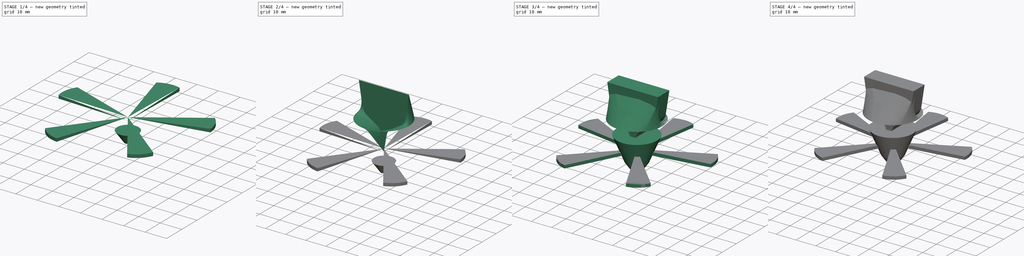
[diagram: build sequence overview — one tinted view per stage of 4, left to right]
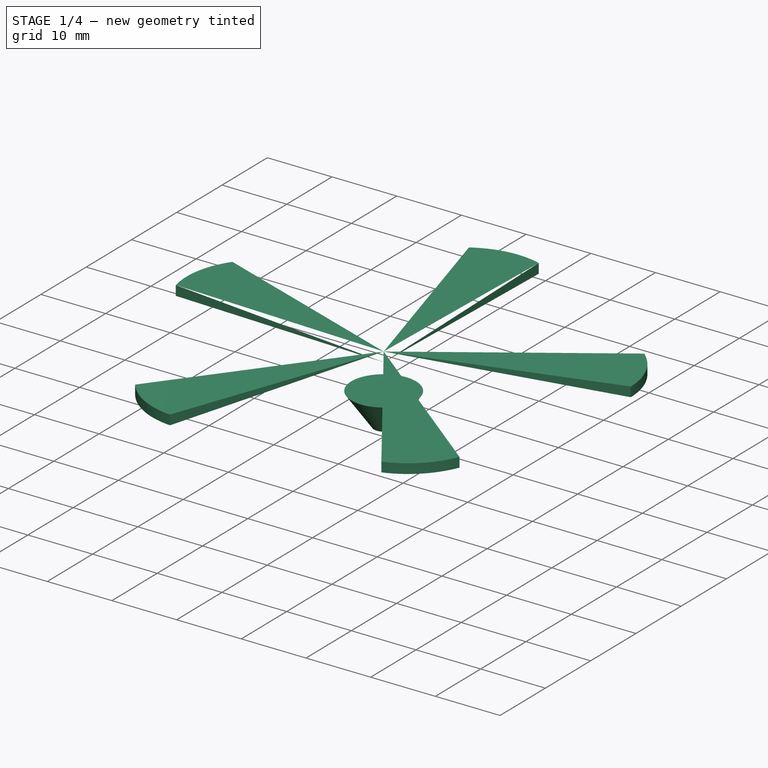
[diagram: stage 1 of 4 — iso view after this stage's code; geometry added in this stage tinted green]
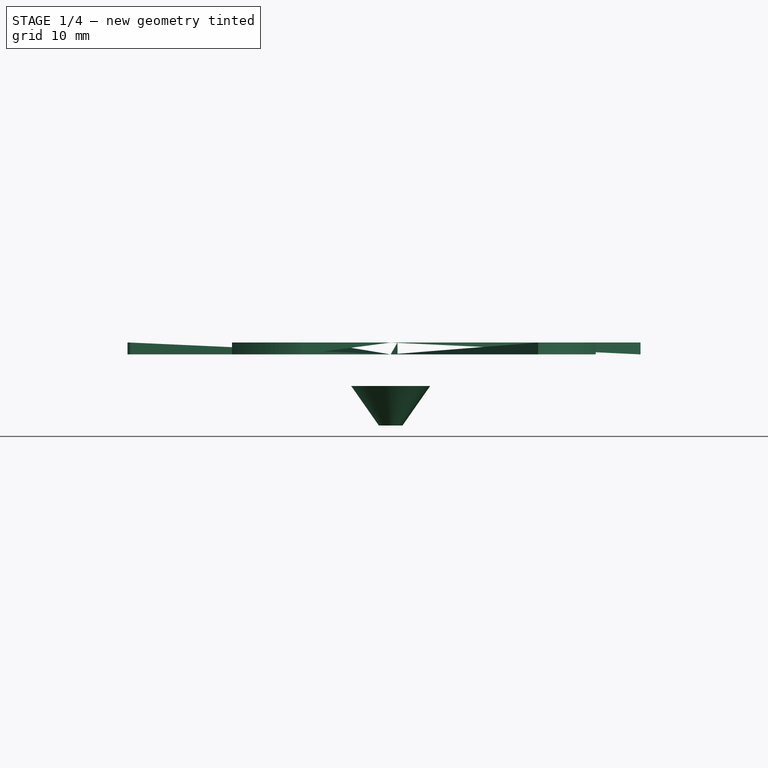
[diagram: stage 1 of 4 — front view after this stage's code; geometry added in this stage tinted green]
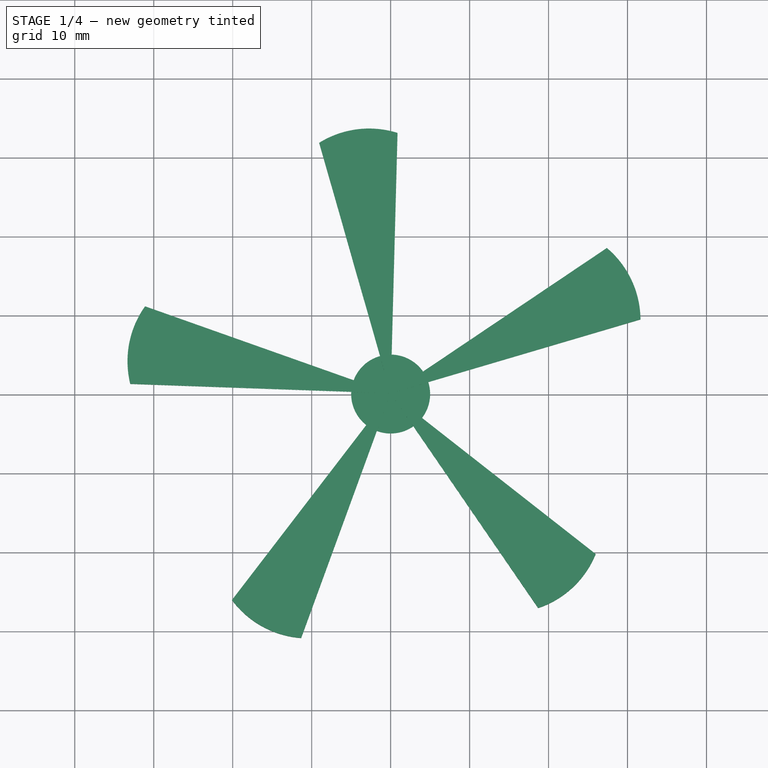
[diagram: stage 1 of 4 — top view after this stage's code; geometry added in this stage tinted green]
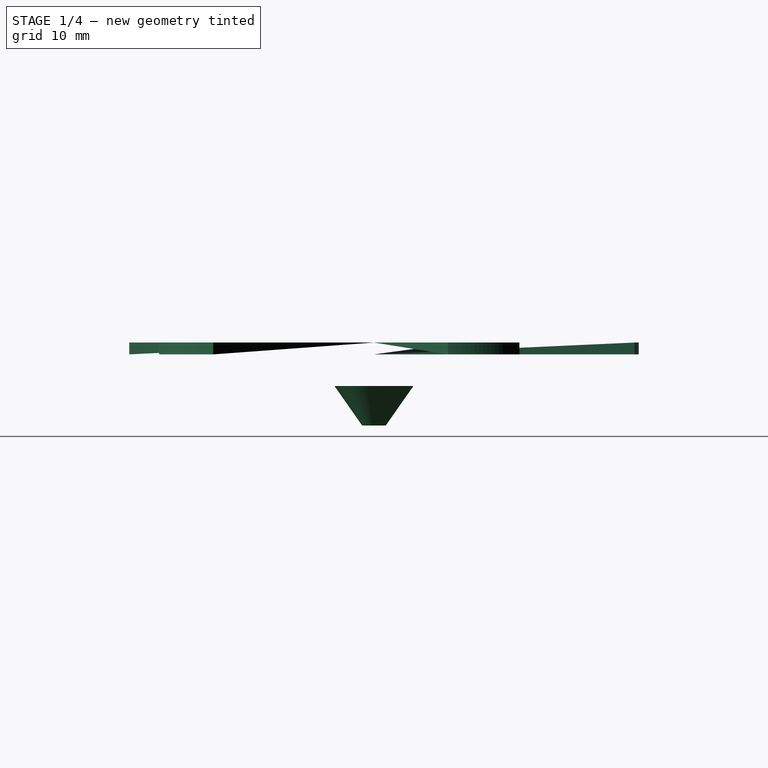
[diagram: stage 1 of 4 — right view after this stage's code; geometry added in this stage tinted green]
FCSTD DOCUMENT  (FreeCAD 0.17R13528 (Git))
Label: propeller3
License: All rights reserved
LicenseURL: http://en.wikipedia.org/wiki/All_rights_reserved
objects: Sketcher::SketchObject×11, Part::Loft×5, PartDesign::Pad×2, App::DocumentObjectGroup×2, PartDesign::Body×2, PartDesign::Fillet×1, Part::Mirroring×1, PartDesign::FeatureBase×1, App::DocumentObjectGroupPython×1
note: 25 computed .brp shape members not serialized (recipe doc carries the construction recipe); baked Part::Feature solids carry a one-line shape summary decoded from their .brp

FEATURE [Sketcher::SketchObject] Sketch
  MapMode = 5
  Support = -> [XY_Plane]
  sketch-geometry (15):
    g0: LineSegment StartX=5 StartY=32.619 StartZ=0 EndX=0 EndY=0 EndZ=0
    g1: LineSegment StartX=0 StartY=0 StartZ=0 EndX=29.4774 EndY=14.8351 EndZ=0
    g2: LineSegment StartX=32.5676 StartY=5.32455 StartZ=0 EndX=0 EndY=0 EndZ=0
    g3: LineSegment StartX=0 StartY=0 StartZ=0 EndX=23.2181 EndY=-23.4504 EndZ=0
    g4: LineSegment StartX=15.1279 StartY=-29.3283 StartZ=0 EndX=0 EndY=0 EndZ=0
    g5: LineSegment StartX=0 StartY=0 StartZ=0 EndX=-15.1279 EndY=-29.3283 EndZ=0
    g6: LineSegment StartX=-23.2181 StartY=-23.4504 StartZ=0 EndX=0 EndY=0 EndZ=0
    g7: LineSegment StartX=0 StartY=0 StartZ=0 EndX=-32.5676 EndY=5.32455 EndZ=0
    g8: LineSegment StartX=-29.4774 StartY=14.8351 StartZ=0 EndX=0 EndY=0 EndZ=0
    g9: LineSegment StartX=0 StartY=0 StartZ=0 EndX=-5 EndY=32.619 EndZ=0
    g10: ArcOfCircle CenterX=0 CenterY=21.7103 CenterZ=0 NormalX=0 NormalY=0 NormalZ=1 AngleXU=0 Radius=12 StartAngle=1.14102 EndAngle=2.00057
    g11: ArcOfCircle CenterX=20.6477 CenterY=6.70885 CenterZ=0 NormalX=0 NormalY=0 NormalZ=1 AngleXU=0 Radius=12 StartAngle=6.16757 EndAngle=7.02712
    g12: ArcOfCircle CenterX=12.761 CenterY=-17.564 CenterZ=0 NormalX=0 NormalY=0 NormalZ=1 AngleXU=0 Radius=12 StartAngle=4.91093 EndAngle=5.77048
    g13: ArcOfCircle CenterX=-12.761 CenterY=-17.564 CenterZ=0 NormalX=0 NormalY=0 NormalZ=1 AngleXU=0 Radius=12 StartAngle=3.6543 EndAngle=4.51385
    g14: ArcOfCircle CenterX=-20.6477 CenterY=6.70885 CenterZ=0 NormalX=0 NormalY=0 NormalZ=1 AngleXU=0 Radius=12 StartAngle=2.39766 EndAngle=3.25721
  constraints (44):
    c: Coincident(g0,g-1)
    c: Coincident(g0,g1)
    c: Coincident(g2,g-1)
    c: Coincident(g2,g3)
    c: Coincident(g4,g-1)
    c: Coincident(g4,g5)
    c: Coincident(g6,g-1)
    c: Coincident(g6,g7)
    c: Coincident(g8,g-1)
    c: Coincident(g8,g9)
    c: Coincident(g14,g8)
    c: Coincident(g14,g7)
    c: Coincident(g10,g9)
    c: Coincident(g0,g10)
    c: Coincident(g1,g11)
    c: Coincident(g11,g2)
    c: Coincident(g3,g12)
    c: Coincident(g4,g12)
    c: Radius(g10) = 12
    c: Radius(g11) = 12
    c: Radius(g12) = 12
    c: Coincident(g13,g6)
    c: Coincident(g5,g13)
    c: Radius(g13) = 12
    c: Radius(g14) = 12
    c: Distance(g0,g9) = 10
    c: Distance(g1,g2) = 10
    c: Distance(g3,g4) = 10
    c: Distance(g5,g6) = 10
    c: Distance(g7,g8) = 10
    c: Angle(g0,g8) = 1.25664
    c: Angle(g2,g0) = 1.25664
    c: Angle(g4,g2) = 1.25664
    c: Angle(g6,g4) = 1.25664
    c: Symmetric(g0,g9,g-2)
    c: Distance(g-1,g9) = 33
    c: Distance(g-1,g1) = 33
    c: Distance(g-1,g3) = 33
    c: Distance(g-1,g5) = 33
    c: Distance(g-1,g7) = 33
    c: Distance(g4) = 33
    c: Distance(g6) = 33
    c: Distance(g8) = 33
    c: Distance(g2) = 33
FEATURE [PartDesign::Pad] Pad  label="Propeller"
  Length = 1.5
  Length2 = 100
  Placement = pos=(0,0,0) rot=(0,0,1;2.63894rad)
  Profile = -> Sketch
  Type = 0
FEATURE [Sketcher::SketchObject] Sketch010  label="test_sketch"
  Placement = pos=(0,-20,0) rot=(1,0,0;1.5708rad)
  sketch-geometry (5):
    g0: LineSegment StartX=12.5 StartY=15.0383 StartZ=0 EndX=10.8039 EndY=4.03828 EndZ=0
    g1: LineSegment StartX=8.11478 StartY=-0.0968081 StartZ=0 EndX=3.39927 EndY=-3.12332 EndZ=0
    g2: LineSegment StartX=1.39927 StartY=-6.12332 StartZ=0 EndX=0 EndY=-14 EndZ=0
    g3: ArcOfCircle CenterX=4.87394 CenterY=4.95264 CenterZ=0 NormalX=0 NormalY=0 NormalZ=1 AngleXU=0 Radius=6 StartAngle=5.28299 EndAngle=6.1302
    g4: ArcOfCircle CenterX=5.8299 CenterY=-6.91041 CenterZ=0 NormalX=0 NormalY=0 NormalZ=1 AngleXU=0 Radius=4.5 StartAngle=2.1414 EndAngle=2.96578
  constraints (14):
    c: Tangent(g0,g3) = 1.5708
    c: Tangent(g1,g3) = 1.5708
    c: Tangent(g1,g4) = -1.5708
    c: Tangent(g2,g4) = -1.5708
    c: PointOnObject(g2,g-2)
    c: Distance(g2) = 8
    c: Radius(g4) = 4.5
    c: DistanceY(g2,g1) = 3
    c: DistanceX(g2,g1) = 2
    c: DistanceY(g0,g0) = 11
    c: Radius(g3) = 6
    c: DistanceX(g-1,g0) = 12.5
    c: DistanceY(g2,g-1) = 14
    c: Distance(g0,g0) = 11.13
FEATURE [App::DocumentObjectGroup] Group  label="winkeln zur näherung des kreises"
  Group = -> [Sketch010]
FEATURE [Sketcher::SketchObject] Sketch011  label="kreis_nr_3"
  MapMode = 5
  Placement = pos=(0,0,-4) rot=(0,0,1;0rad)
  sketch-geometry (1):
    g0: Circle CenterX=0 CenterY=0 CenterZ=0 NormalX=0 NormalY=0 NormalZ=1 AngleXU=0 Radius=5
  constraints (2):
    c: Coincident(g0,g-1)
    c: Radius(g0) = 5
FEATURE [PartDesign::Body] Body  label="Propellerprojekt"
  Group = -> [Sketch,Pad,Sketch004,Sketch006,Sketch008,Pad001,Fillet,Sketch011]
  Origin = -> Origin
  Tip = -> Fillet
FEATURE [Part::Loft] Loft004
  Closed = false
  MaxDegree = 5
  Ruled = false
  Sections = -> [Sketch007,Sketch011]
  Solid = true
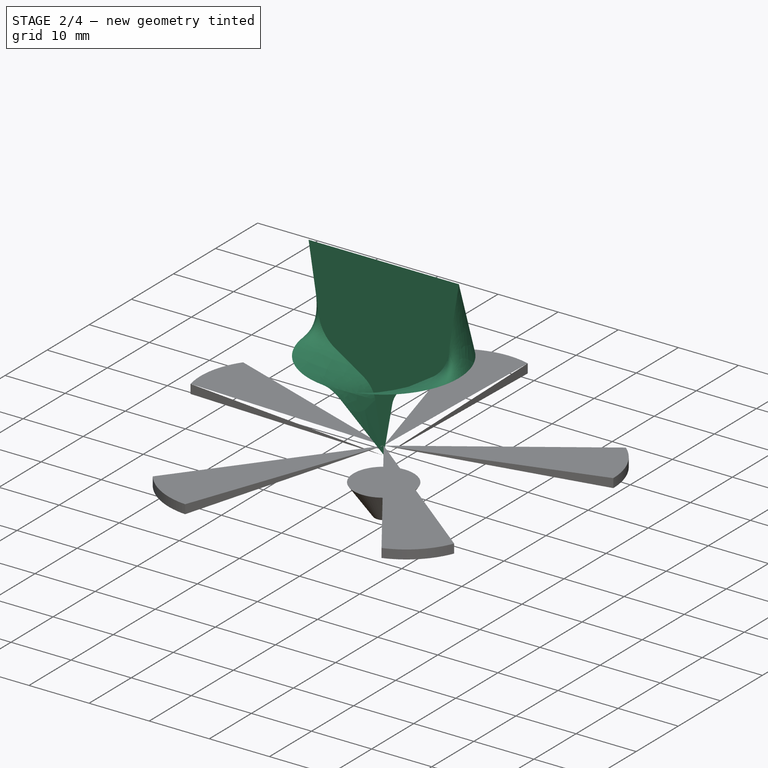
[diagram: stage 2 of 4 — iso view after this stage's code; geometry added in this stage tinted green]
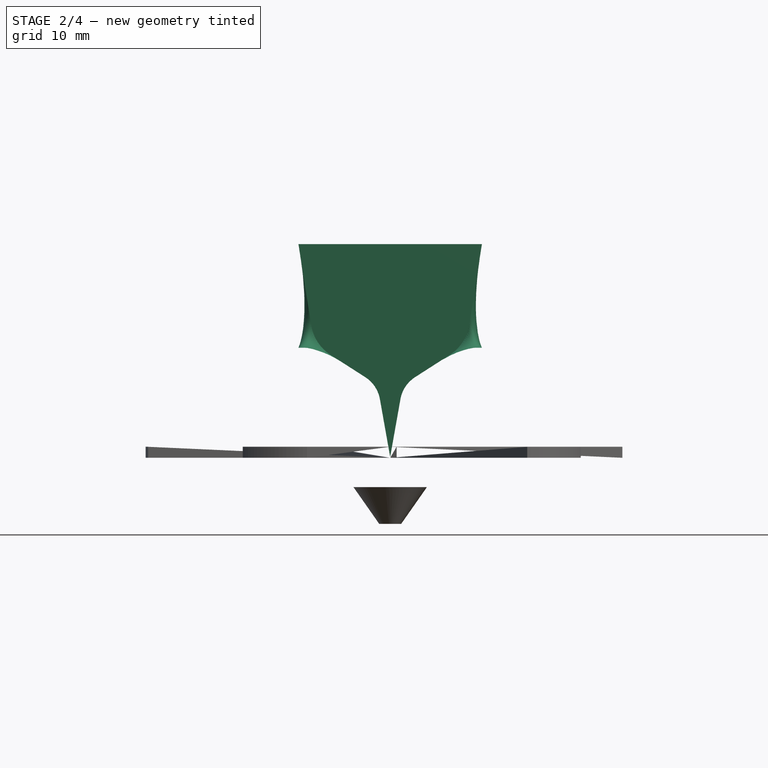
[diagram: stage 2 of 4 — front view after this stage's code; geometry added in this stage tinted green]
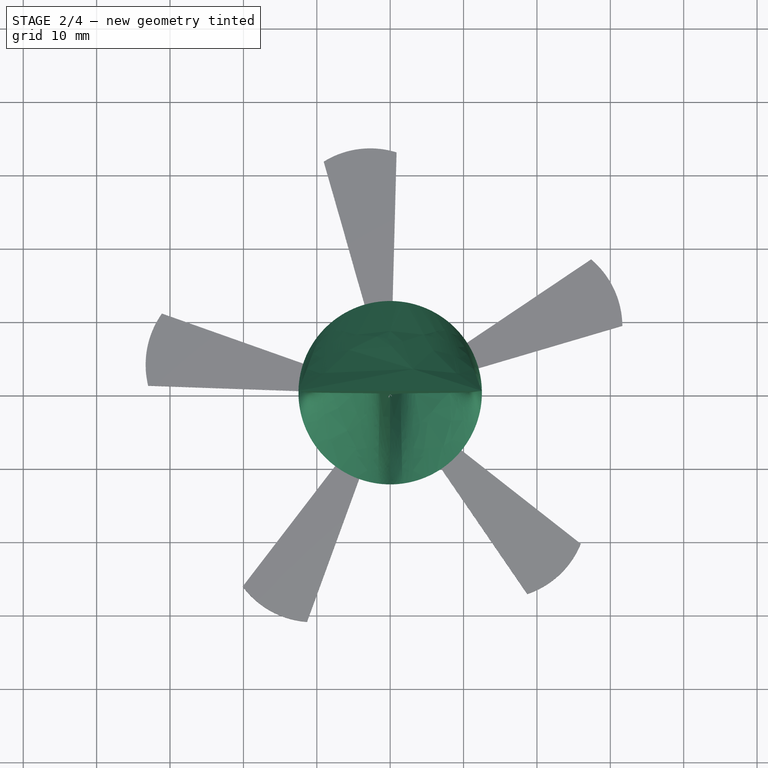
[diagram: stage 2 of 4 — top view after this stage's code; geometry added in this stage tinted green]
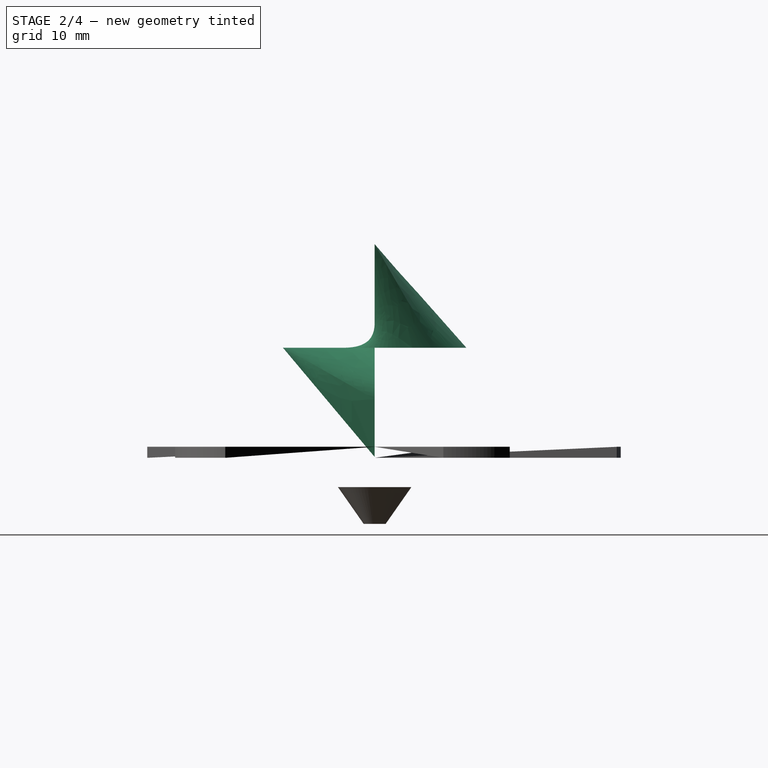
[diagram: stage 2 of 4 — right view after this stage's code; geometry added in this stage tinted green]
FEATURE [Sketcher::SketchObject] Sketch009
  MapMode = 2
  Placement = pos=(0,0,15) rot=(0,0,1;0rad)
  sketch-geometry (1):
    g0: Circle CenterX=0 CenterY=0 CenterZ=0 NormalX=0 NormalY=0 NormalZ=1 AngleXU=0 Radius=12.5
  constraints (2):
    c: Coincident(g0,g-1)
    c: Radius(g0) = 12.5
FEATURE [Part::Loft] Loft003
  Closed = false
  MaxDegree = 5
  Ruled = false
  Sections = -> [Sketch008,Sketch009]
  Solid = true
FEATURE [PartDesign::FeatureBase] BaseFeature
  BaseFeature = -> Loft004
FEATURE [PartDesign::Body] Body001  label="propellerroot"
  BaseFeature = -> Loft004
  Group = -> [BaseFeature]
  Origin = -> Origin001
  Tip = -> BaseFeature
FEATURE [App::DocumentObjectGroup] Gruppe
FEATURE [App::DocumentObjectGroupPython] My_Placer  label="propeller_animation"  # scripted group (container) (typed FeaturePython)
  Group = -> [Gruppe]
  Placement = pos=(12,0,0) rot=(0,0,1;0.376991rad)
  RotAxis = (0,0,1)
  RotCenter = (0,0,0)
  arc = time*360
  arc0 = 0
  arc1 = 90
  target = -> Pad
  time = 0.42
  x = 0
  x0 = 0
  x1 = 200
  y = 0
  y0 = 0
  y1 = 0
  z = 0
  z0 = 0
  z1 = 0
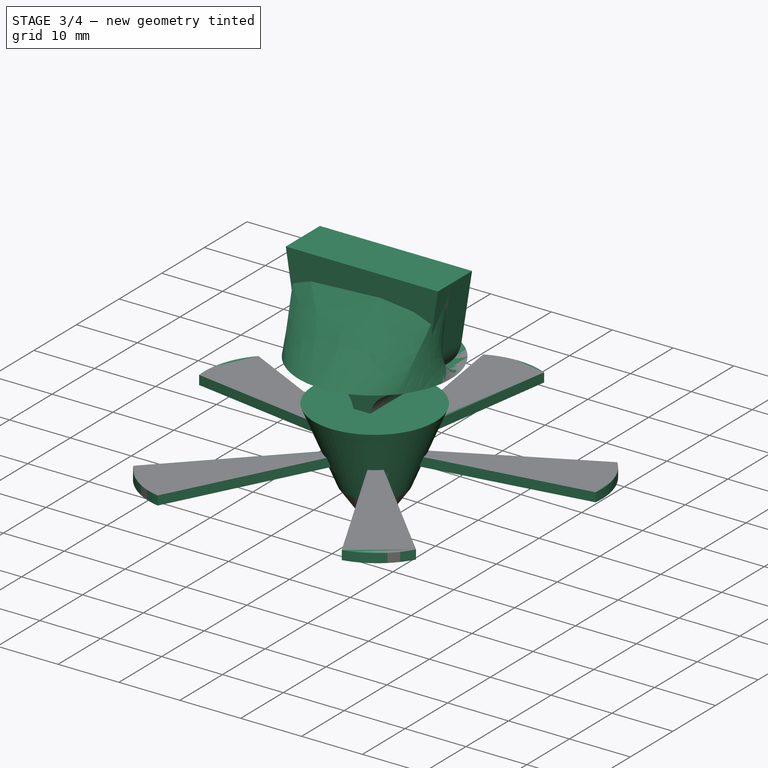
[diagram: stage 3 of 4 — iso view after this stage's code; geometry added in this stage tinted green]
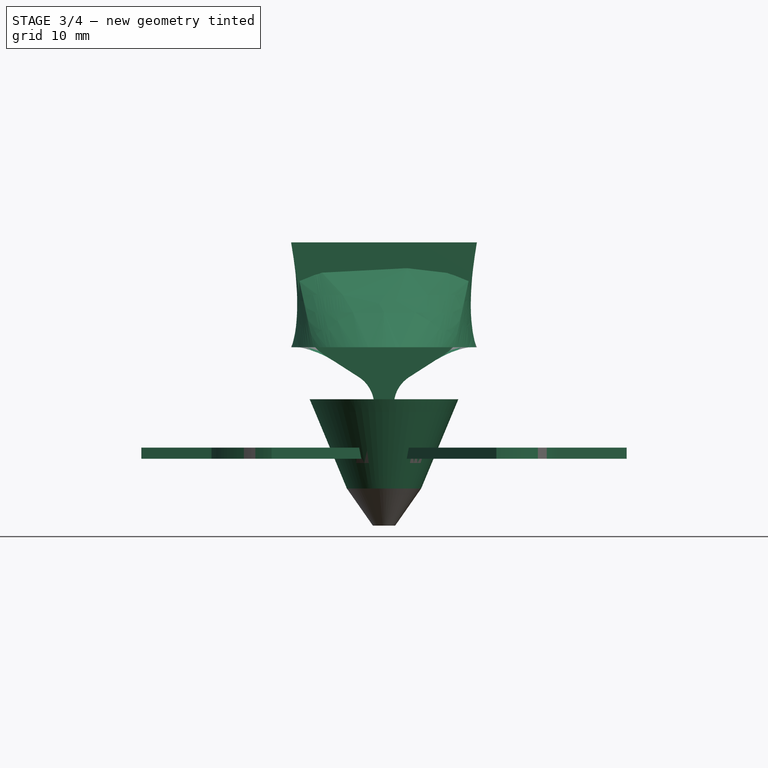
[diagram: stage 3 of 4 — front view after this stage's code; geometry added in this stage tinted green]
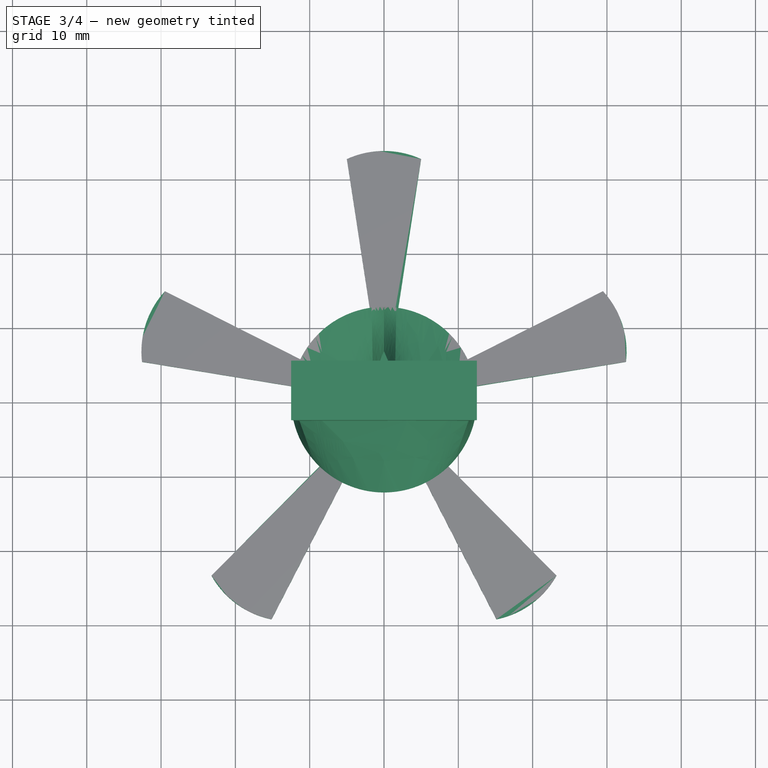
[diagram: stage 3 of 4 — top view after this stage's code; geometry added in this stage tinted green]
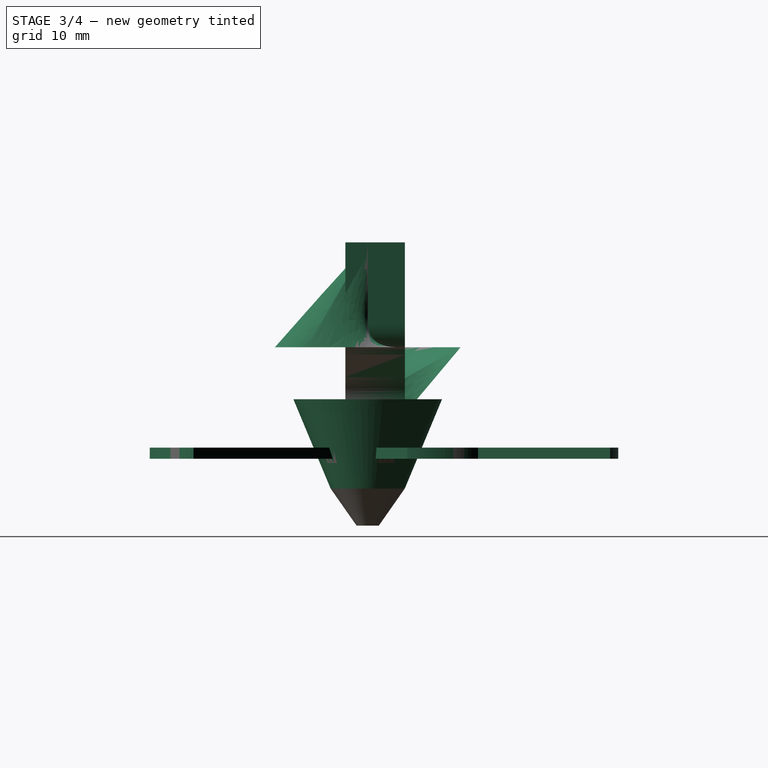
[diagram: stage 3 of 4 — right view after this stage's code; geometry added in this stage tinted green]
FEATURE [Sketcher::SketchObject] Sketch008
  Placement = pos=(0,0,0) rot=(1,0,0;1.5708rad)
  sketch-geometry (11):
    g0: LineSegment StartX=-12.5 StartY=29.117 StartZ=0 EndX=12.5 EndY=29.117 EndZ=0
    g1: LineSegment StartX=12.5 StartY=29.117 StartZ=0 EndX=10.7695 EndY=18.117 EndZ=0
    g2: LineSegment StartX=8.08327 StartY=14 StartZ=0 EndX=3.39927 EndY=10.9937 EndZ=0
    g3: LineSegment StartX=1.39927 StartY=7.99371 StartZ=0 EndX=0 EndY=0.117029 EndZ=0
    g4: LineSegment StartX=0 StartY=0.117029 StartZ=0 EndX=-1.39927 EndY=7.99371 EndZ=0
    g5: LineSegment StartX=-3.39927 StartY=10.9937 StartZ=0 EndX=-8.08327 EndY=14 EndZ=0
    g6: LineSegment StartX=-10.7695 StartY=18.117 StartZ=0 EndX=-12.5 EndY=29.117 EndZ=0
    g7: ArcOfCircle CenterX=4.84243 CenterY=19.0494 CenterZ=0 NormalX=0 NormalY=0 NormalZ=1 AngleXU=0 Radius=6 StartAngle=5.28299 EndAngle=6.12715
    g8: ArcOfCircle CenterX=-4.84243 CenterY=19.0494 CenterZ=0 NormalX=0 NormalY=0 NormalZ=1 AngleXU=0 Radius=6 StartAngle=3.29763 EndAngle=4.14179
    g9: ArcOfCircle CenterX=-5.8299 CenterY=7.20662 CenterZ=0 NormalX=0 NormalY=0 NormalZ=1 AngleXU=0 Radius=4.5 StartAngle=0.175813 EndAngle=1.00019
    g10: ArcOfCircle CenterX=5.8299 CenterY=7.20662 CenterZ=0 NormalX=0 NormalY=0 NormalZ=1 AngleXU=0 Radius=4.5 StartAngle=2.1414 EndAngle=2.96578
  constraints (28):
    c: Horizontal(g0)
    c: Coincident(g0,g1)
    c: Coincident(g3,g4)
    c: Coincident(g6,g0)
    c: Tangent(g1,g7) = 1.5708
    c: Tangent(g2,g7) = 1.5708
    c: Tangent(g5,g8) = 1.5708
    c: Tangent(g6,g8) = 1.5708
    c: Tangent(g4,g9) = -1.5708
    c: Tangent(g5,g9) = -1.5708
    c: Tangent(g2,g10) = -1.5708
    c: Tangent(g3,g10) = -1.5708
    c: PointOnObject(g3,g-2)
    c: Distance(g3) = 8
    c: Radius(g10) = 4.5
    c: DistanceY(g3,g2) = 3
    c: DistanceX(g3,g2) = 2
    c: Symmetric(g4,g3,g-2)
    c: DistanceX(g0,g0) = 25
    c: Radius(g9) = 4.5
    c: DistanceY(g4,g5) = 3
    c: DistanceY(g1,g1) = 11
    c: DistanceY(g6,g6) = 11
    c: Radius(g8) = 6
    c: Radius(g7) = 6
    c: DistanceX(g-1,g0) = 12.5
    c: DistanceY(g3,g0) = 29
    c: DistanceY(g-1,g5) = 14
FEATURE [PartDesign::Pad] Pad001
  BaseFeature = -> Pad
  Length = 3
  Length2 = 5
  Midplane = true
  Offset = 7
  Profile = -> Sketch008
  Type = 4
FEATURE [Part::Loft] Loft005
  Closed = false
  MaxDegree = 5
  Ruled = false
  Sections = -> [Sketch011,Sketch004]
  Solid = true
FEATURE [Part::Mirroring] Part__Mirroring  label="Loft003 (Mirror #1)"
  Base = (0,0,0)
  Normal = (0,1,0)
  Source = -> Loft003
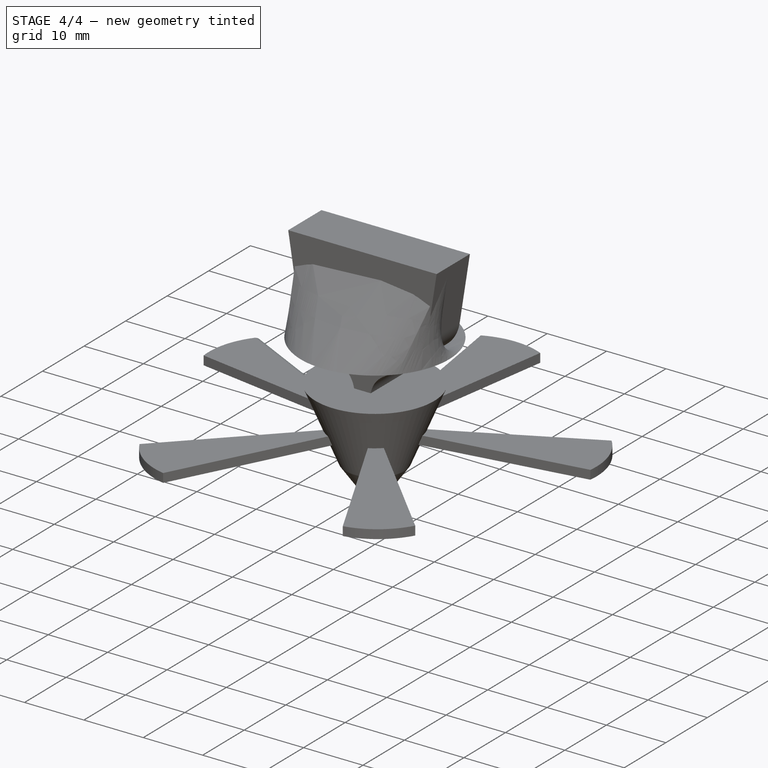
[diagram: stage 4 of 4 — iso view after this stage's code; geometry added in this stage tinted green]
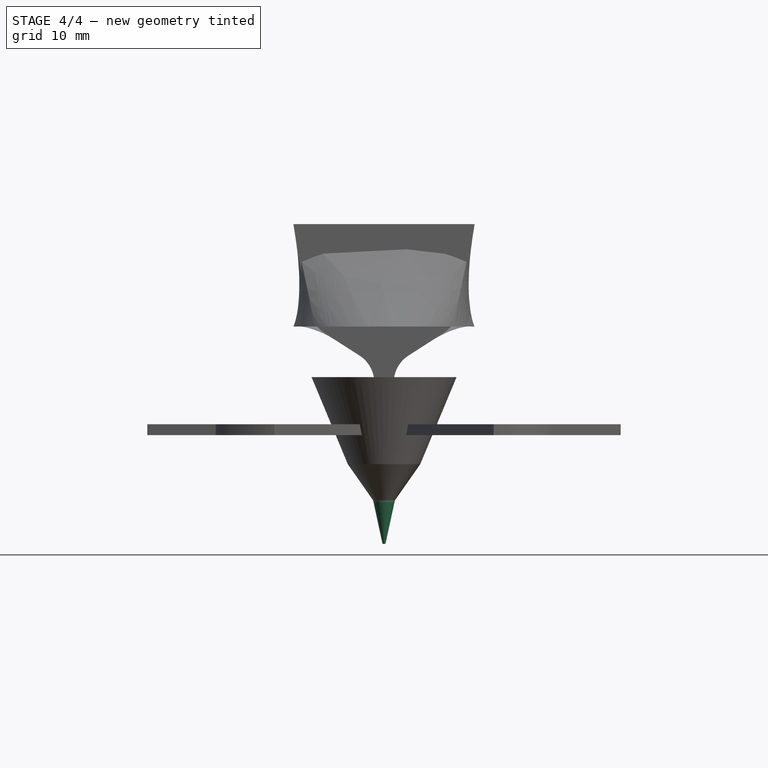
[diagram: stage 4 of 4 — front view after this stage's code; geometry added in this stage tinted green]
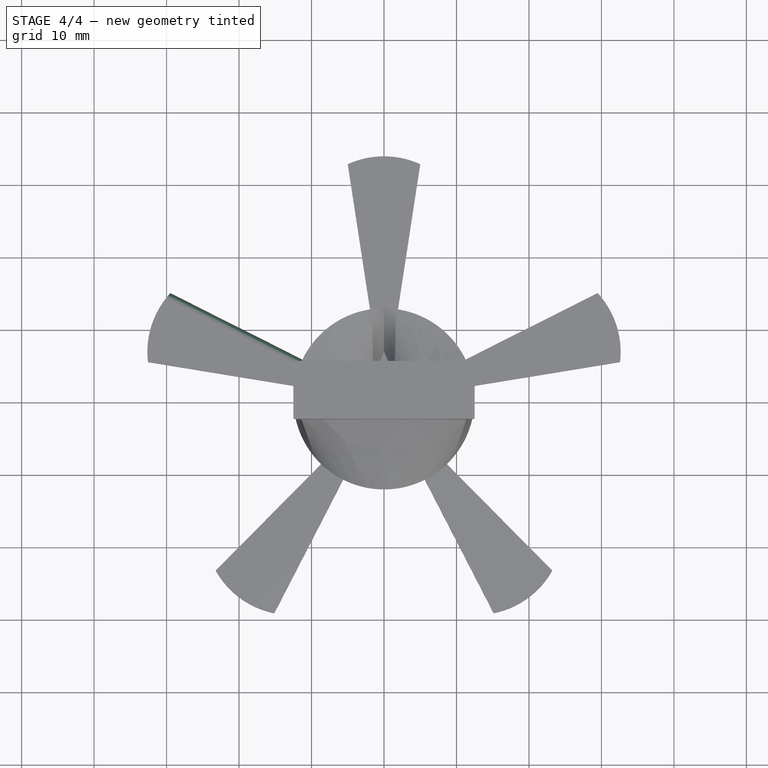
[diagram: stage 4 of 4 — top view after this stage's code; geometry added in this stage tinted green]
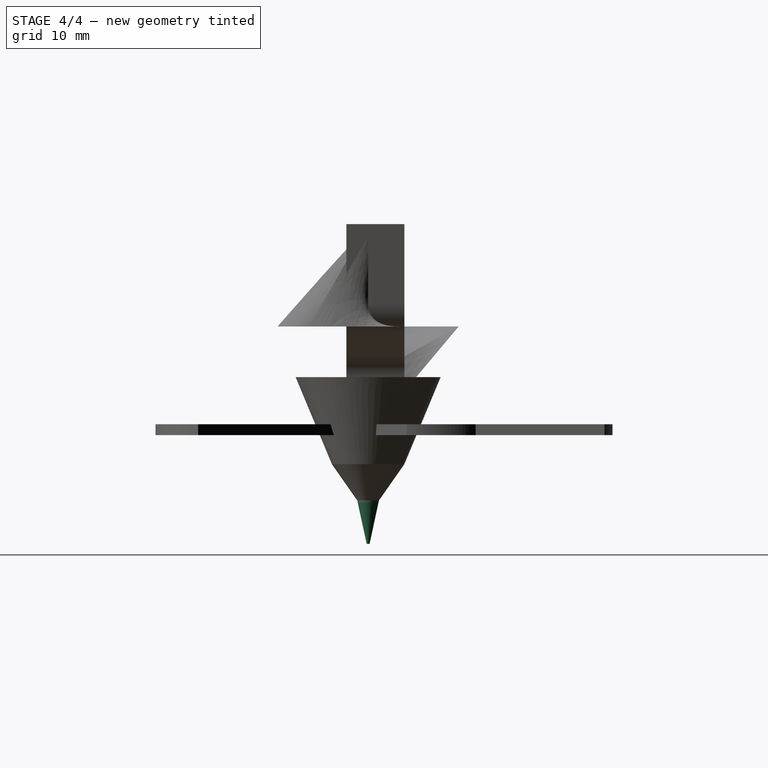
[diagram: stage 4 of 4 — right view after this stage's code; geometry added in this stage tinted green]
FEATURE [Sketcher::SketchObject] Sketch001
  MapMode = 2
  Placement = pos=(0,0,20) rot=(0,0,1;0rad)
  sketch-geometry (1):
    g0: Circle CenterX=0 CenterY=0 CenterZ=0 NormalX=0 NormalY=0 NormalZ=1 AngleXU=0 Radius=39
  constraints (2):
    c: Coincident(g0,g-1)
    c: Radius(g0) = 39
FEATURE [Sketcher::SketchObject] Sketch002
  MapMode = 2
  Placement = pos=(0,0,-50) rot=(0,0,1;0rad)
  sketch-geometry (1):
    g0: Circle CenterX=0 CenterY=0 CenterZ=0 NormalX=0 NormalY=0 NormalZ=1 AngleXU=0 Radius=28
  constraints (2):
    c: Coincident(g0,g-1)
    c: Radius(g0) = 28
FEATURE [Part::Loft] Loft
  Closed = false
  MaxDegree = 5
  Placement = pos=(0,0,0) rot=(0,1,0;3.14159rad)
  Ruled = true
  Sections = -> [Sketch001,Sketch002]
  Solid = false
FEATURE [Sketcher::SketchObject] Sketch003  label="kreis_nr_1"
  MapMode = 2
  Placement = pos=(0,0,-15) rot=(0,0,1;0rad)
  sketch-geometry (1):
    g0: Circle CenterX=0 CenterY=0 CenterZ=0 NormalX=0 NormalY=0 NormalZ=1 AngleXU=0 Radius=0.2
  constraints (2):
    c: Coincident(g0,g-1)
    c: Radius(g0) = 0.2
FEATURE [Sketcher::SketchObject] Sketch004  label="kreis_nr_4"
  MapMode = 5
  Placement = pos=(0,0,8) rot=(0,0,1;0rad)
  sketch-geometry (1):
    g0: Circle CenterX=0 CenterY=0 CenterZ=0 NormalX=0 NormalY=0 NormalZ=1 AngleXU=0 Radius=10
  constraints (2):
    c: Coincident(g0,g-1)
    c: Radius(g0) = 10
FEATURE [Sketcher::SketchObject] Sketch006
  MapMode = 5
  Placement = pos=(0,0,0) rot=(1,0,0;1.5708rad)
  Support = -> [XZ_Plane]
FEATURE [Sketcher::SketchObject] Sketch007  label="kreis_nr_2"
  MapMode = 2
  Placement = pos=(0,0,-9) rot=(0,0,1;0rad)
  sketch-geometry (1):
    g0: Circle CenterX=0 CenterY=0 CenterZ=0 NormalX=0 NormalY=0 NormalZ=1 AngleXU=0 Radius=1.5
  constraints (2):
    c: Coincident(g0,g-1)
    c: Radius(g0) = 1.5
FEATURE [Part::Loft] Loft001
  Closed = false
  MaxDegree = 5
  Ruled = false
  Sections = -> [Sketch003,Sketch007]
  Solid = true
FEATURE [PartDesign::Fillet] Fillet
  Base = -> Pad001 [Edge47]
  BaseFeature = -> Pad001
  Radius = 1
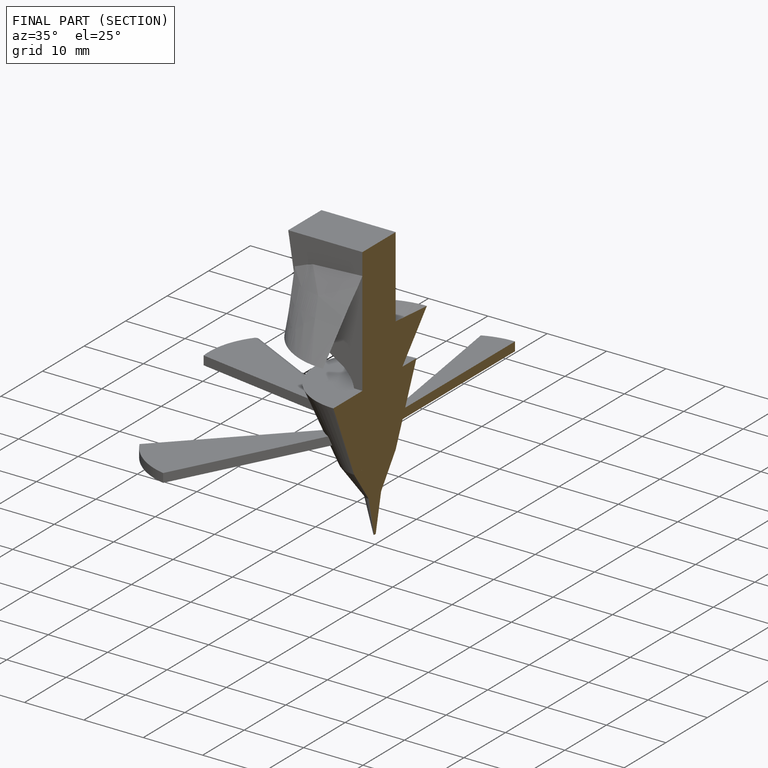
[diagram: finished part — half-section view (interior)]
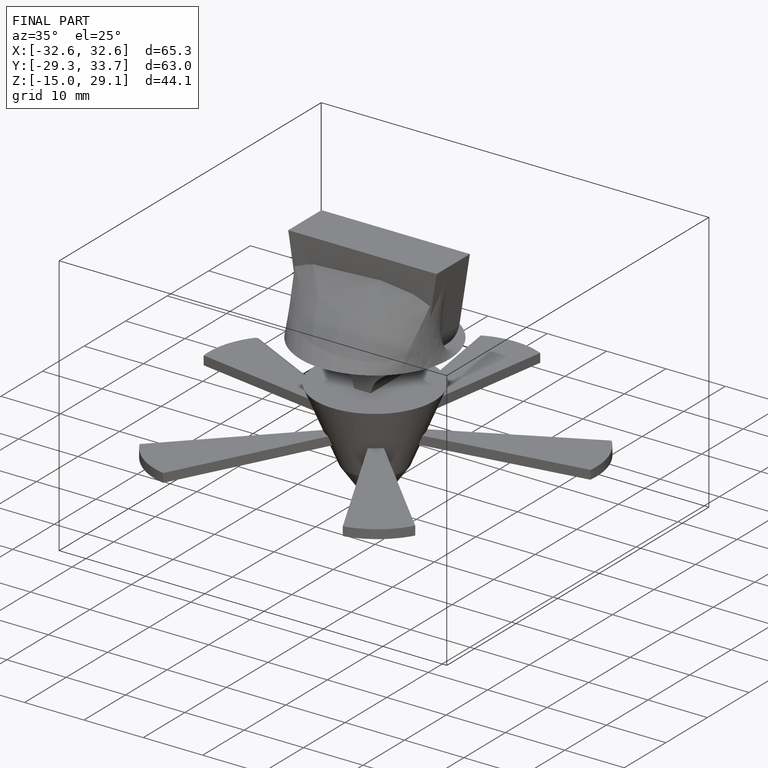
[diagram: finished part — iso view with bounding-box wireframe]
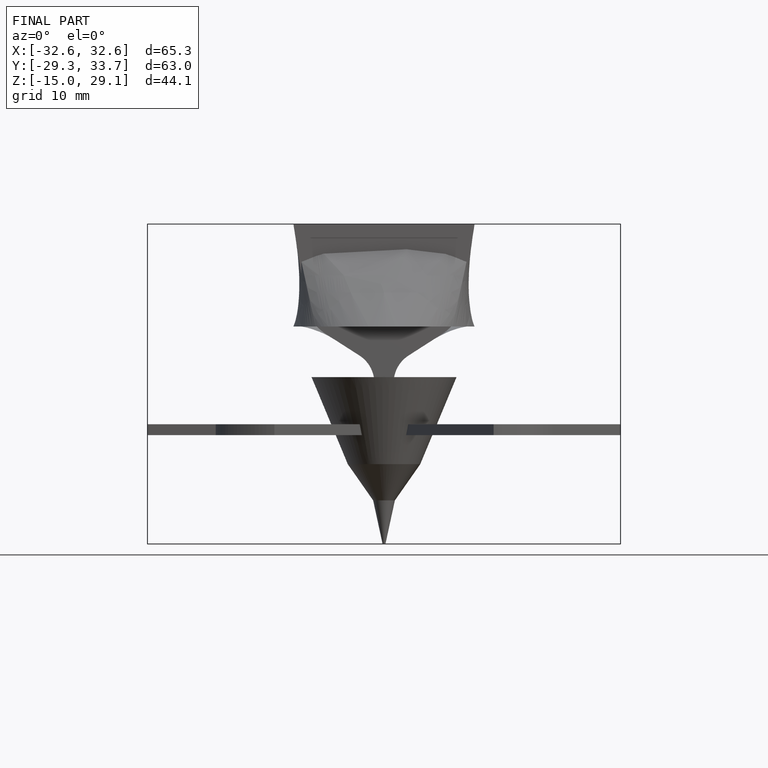
[diagram: finished part — front view with bounding-box wireframe]
